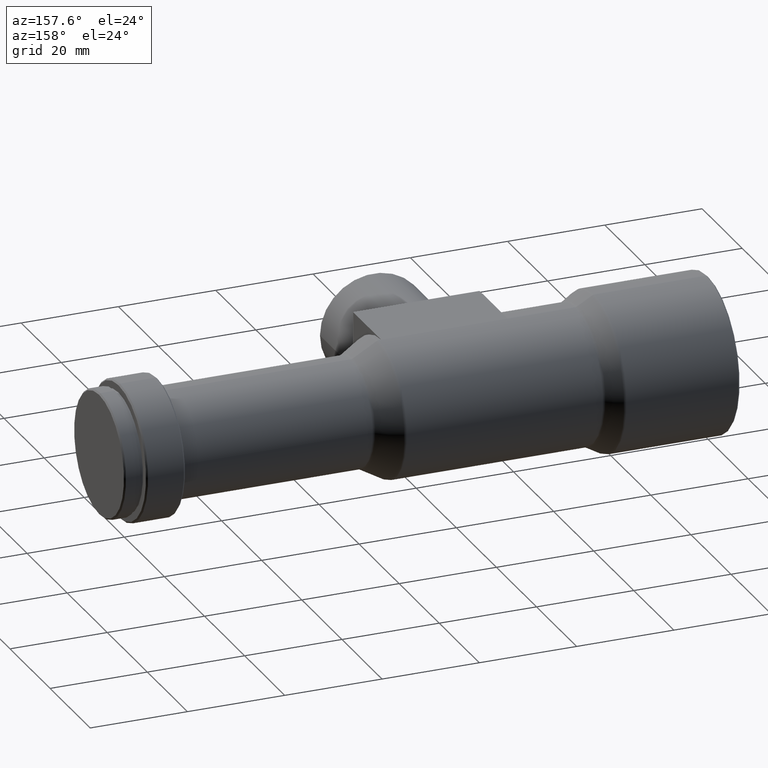
[diagram: clean part render]
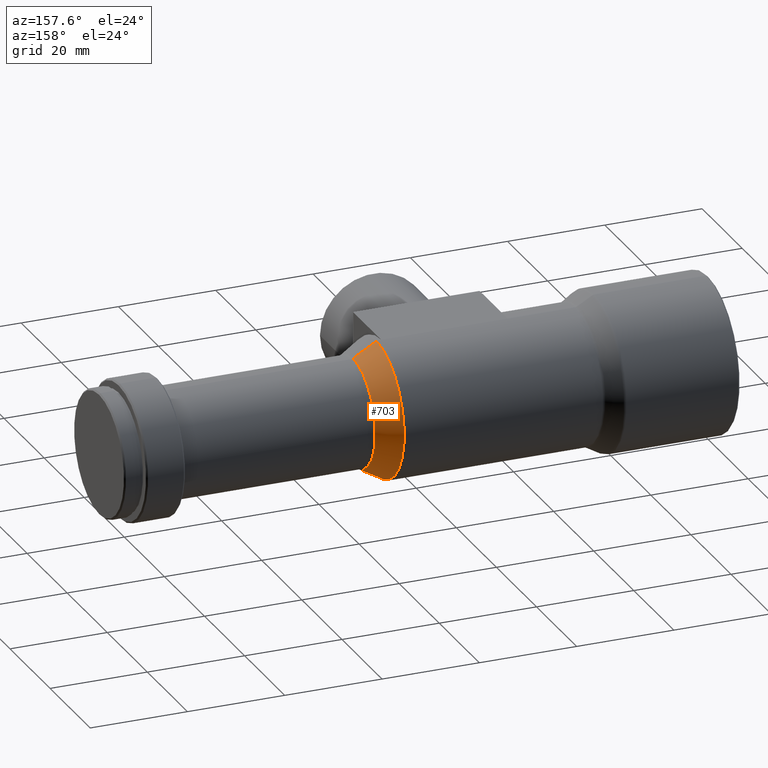
[diagram: same view with one face highlighted and labeled with its STEP entity id]
A machine part, auxiliary view. The second image highlights one B-rep face of the part: STEP entity #703.
In plain terms, the highlighted conical surface has half-angle 29.648 deg.
Its self-contained STEP definition (entity closure, byte-faithful):
#6 = DIRECTION ( 'NONE',  ( -0.8690813454730798000, 6.057950493494797200E-017, -0.4946691974953577000 ) ) ;
#8 = DIRECTION ( 'NONE',  ( 0.0000000000000000000, 0.0000000000000000000, 1.000000000000000000 ) ) ;
#9 = ORIENTED_EDGE ( 'NONE', *, *, #753, .T. ) ;
#23 = CARTESIAN_POINT ( 'NONE',  ( 73.00533080250464500, 0.0000000000000000000, 0.0000000000000000000 ) ) ;
#66 = DIRECTION ( 'NONE',  ( 0.0000000000000000000, 0.0000000000000000000, 1.000000000000000000 ) ) ;
#115 = CARTESIAN_POINT ( 'NONE',  ( 68.19466919749535800, 0.0000000000000000000, 13.86908134547308300 ) ) ;
#144 = CIRCLE ( 'NONE', #303, 11.13091865452692800 ) ;
#187 = LINE ( 'NONE', #219, #538 ) ;
#219 = CARTESIAN_POINT ( 'NONE',  ( 73.00533080250464500, 1.363144390183596600E-015, -11.13091865452692800 ) ) ;
#224 = DIRECTION ( 'NONE',  ( -1.000000000000000000, -0.0000000000000000000, -0.0000000000000000000 ) ) ;
#237 = VERTEX_POINT ( 'NONE', #372 ) ;
#257 = EDGE_CURVE ( 'NONE', #1114, #1259, #969, .T. ) ;
#288 = DIRECTION ( 'NONE',  ( -1.000000000000000000, -0.0000000000000000000, -0.0000000000000000000 ) ) ;
#303 = AXIS2_PLACEMENT_3D ( 'NONE', #705, #224, #8 ) ;
#360 = CONICAL_SURFACE ( 'NONE', #567, 11.13091865452692800, 0.5174541556960662300 ) ;
#372 = CARTESIAN_POINT ( 'NONE',  ( 73.00533080250464500, 1.363144390183596200E-015, -11.13091865452692600 ) ) ;
#475 = AXIS2_PLACEMENT_3D ( 'NONE', #877, #288, #66 ) ;
#518 = DIRECTION ( 'NONE',  ( -0.8690813454730798000, 0.0000000000000000000, 0.4946691974953577000 ) ) ;
#538 = VECTOR ( 'NONE', #6, 1000.000000000000200 ) ;
#567 = AXIS2_PLACEMENT_3D ( 'NONE', #23, #600, #1314 ) ;
#582 = VECTOR ( 'NONE', #518, 1000.000000000000200 ) ;
#587 = ORIENTED_EDGE ( 'NONE', *, *, #734, .F. ) ;
#600 = DIRECTION ( 'NONE',  ( -1.000000000000000000, -0.0000000000000000000, -0.0000000000000000000 ) ) ;
#642 = LINE ( 'NONE', #706, #582 ) ;
#703 = ADVANCED_FACE ( 'NONE', ( #839 ), #360, .T. ) ;
#705 = CARTESIAN_POINT ( 'NONE',  ( 73.00533080250464500, 0.0000000000000000000, 0.0000000000000000000 ) ) ;
#706 = CARTESIAN_POINT ( 'NONE',  ( 73.00533080250464500, 0.0000000000000000000, 11.13091865452692800 ) ) ;
#734 = EDGE_CURVE ( 'NONE', #1308, #1114, #642, .T. ) ;
#753 = EDGE_CURVE ( 'NONE', #237, #1259, #187, .T. ) ;
#795 = ORIENTED_EDGE ( 'NONE', *, *, #1149, .T. ) ;
#839 = FACE_OUTER_BOUND ( 'NONE', #915, .T. ) ;
#877 = CARTESIAN_POINT ( 'NONE',  ( 68.19466919749535800, 0.0000000000000000000, 0.0000000000000000000 ) ) ;
#915 = EDGE_LOOP ( 'NONE', ( #795, #9, #1147, #587 ) ) ;
#949 = CARTESIAN_POINT ( 'NONE',  ( 73.00533080250464500, 0.0000000000000000000, 11.13091865452692600 ) ) ;
#969 = CIRCLE ( 'NONE', #475, 13.86908134547308300 ) ;
#1114 = VERTEX_POINT ( 'NONE', #115 ) ;
#1147 = ORIENTED_EDGE ( 'NONE', *, *, #257, .F. ) ;
#1149 = EDGE_CURVE ( 'NONE', #1308, #237, #144, .T. ) ;
#1246 = CARTESIAN_POINT ( 'NONE',  ( 68.19466919749535800, 1.698472607684787800E-015, -13.86908134547308300 ) ) ;
#1259 = VERTEX_POINT ( 'NONE', #1246 ) ;
#1308 = VERTEX_POINT ( 'NONE', #949 ) ;
#1314 = DIRECTION ( 'NONE',  ( 0.0000000000000000000, 0.0000000000000000000, 1.000000000000000000 ) ) ;